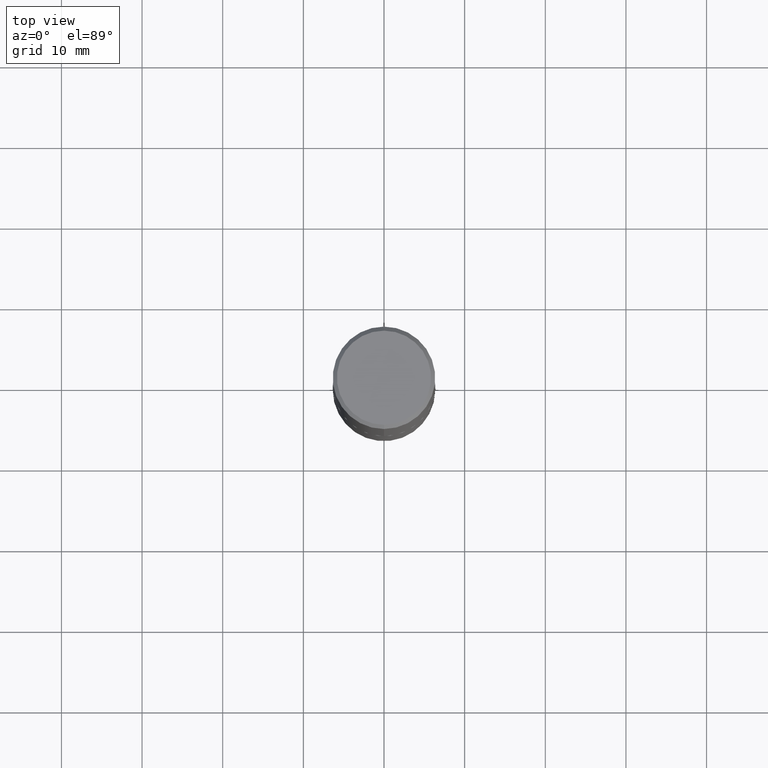
[diagram: clean part render]
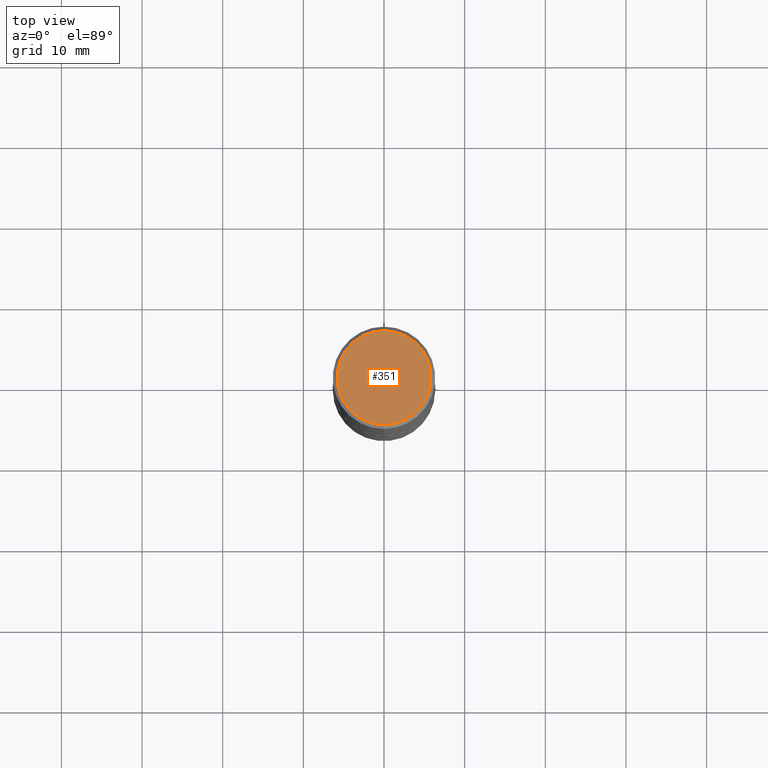
[diagram: same view with one face highlighted and labeled with its STEP entity id]
A machine part, top view. The second image highlights one B-rep face of the part: STEP entity #351.
In plain terms, the highlighted planar face has unit normal (0, -0, -1).
Its self-contained STEP definition (entity closure, byte-faithful):
#10 = CARTESIAN_POINT ( 'NONE',  ( -1.646519519465166968E-15, -0.2299999999999999822, 7.772528406023046093E-16 ) ) ;
#29 = AXIS2_PLACEMENT_3D ( 'NONE', #284, #357, #414 ) ;
#33 = PLANE ( 'NONE',  #266 ) ;
#51 = EDGE_CURVE ( 'NONE', #82, #176, #184, .T. ) ;
#68 = DIRECTION ( 'NONE',  ( 6.982962677686265922E-15, 1.000000000000000000, -3.491097007558327602E-15 ) ) ;
#82 = VERTEX_POINT ( 'NONE', #417 ) ;
#126 = DIRECTION ( 'NONE',  ( 2.445737183286911400E-29, -3.491097007558327602E-15, -1.000000000000000000 ) ) ;
#129 = CARTESIAN_POINT ( 'NONE',  ( 1.606081415867841067E-15, 0.2299999999999999822, -8.158020473064706174E-16 ) ) ;
#176 = VERTEX_POINT ( 'NONE', #10 ) ;
#179 = EDGE_LOOP ( 'NONE', ( #180, #345 ) ) ;
#180 = ORIENTED_EDGE ( 'NONE', *, *, #51, .T. ) ;
#184 = CIRCLE ( 'NONE', #233, 0.2299999999999999822 ) ;
#225 = CIRCLE ( 'NONE', #29, 0.2299999999999999822 ) ;
#233 = AXIS2_PLACEMENT_3D ( 'NONE', #354, #280, #313 ) ;
#266 = AXIS2_PLACEMENT_3D ( 'NONE', #129, #126, #68 ) ;
#280 = DIRECTION ( 'NONE',  ( -2.445737183286911680E-29, 3.491097007558327602E-15, 1.000000000000000000 ) ) ;
#284 = CARTESIAN_POINT ( 'NONE',  ( 6.285415214839433991E-46, -8.971934677910720830E-32, -2.569947113611056727E-17 ) ) ;
#313 = DIRECTION ( 'NONE',  ( -6.982962677686265922E-15, -1.000000000000000000, 3.491097007558327207E-15 ) ) ;
#337 = EDGE_CURVE ( 'NONE', #176, #82, #225, .T. ) ;
#345 = ORIENTED_EDGE ( 'NONE', *, *, #337, .T. ) ;
#351 = ADVANCED_FACE ( 'NONE', ( #416 ), #33, .F. ) ;
#354 = CARTESIAN_POINT ( 'NONE',  ( 6.285415214839433991E-46, -8.971934677910720830E-32, -2.569947113611056727E-17 ) ) ;
#357 = DIRECTION ( 'NONE',  ( -2.445737183286911680E-29, 3.491097007558327602E-15, 1.000000000000000000 ) ) ;
#414 = DIRECTION ( 'NONE',  ( -6.982962677686265922E-15, -1.000000000000000000, 3.491097007558327207E-15 ) ) ;
#416 = FACE_OUTER_BOUND ( 'NONE', #179, .T. ) ;
#417 = CARTESIAN_POINT ( 'NONE',  ( 1.675911042644703774E-15, 0.2299999999999999822, -8.286517828745257562E-16 ) ) ;